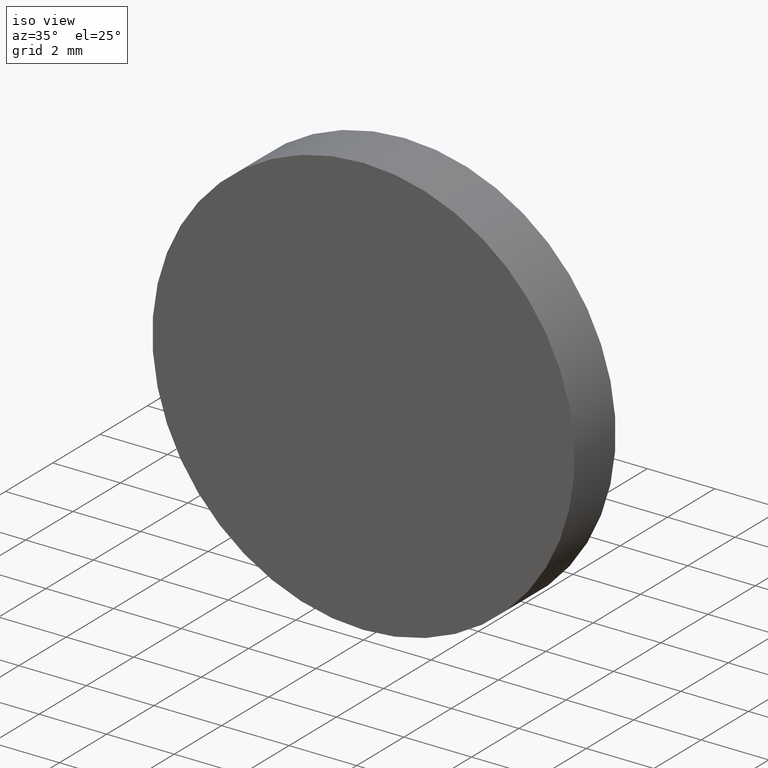
[diagram: clean part render]
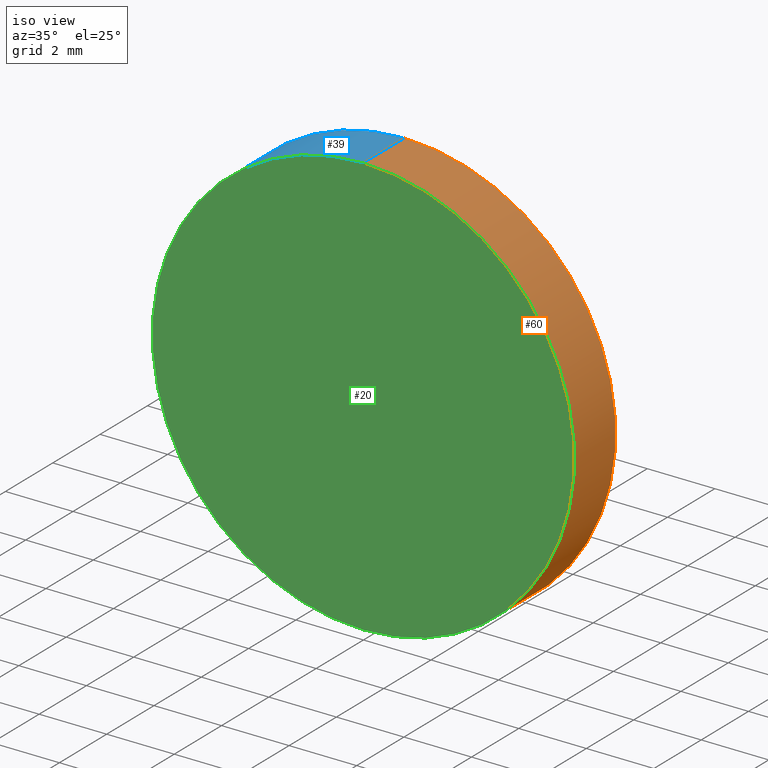
[diagram: same view with three faces highlighted in distinct colors, each labeled with its STEP entity id]
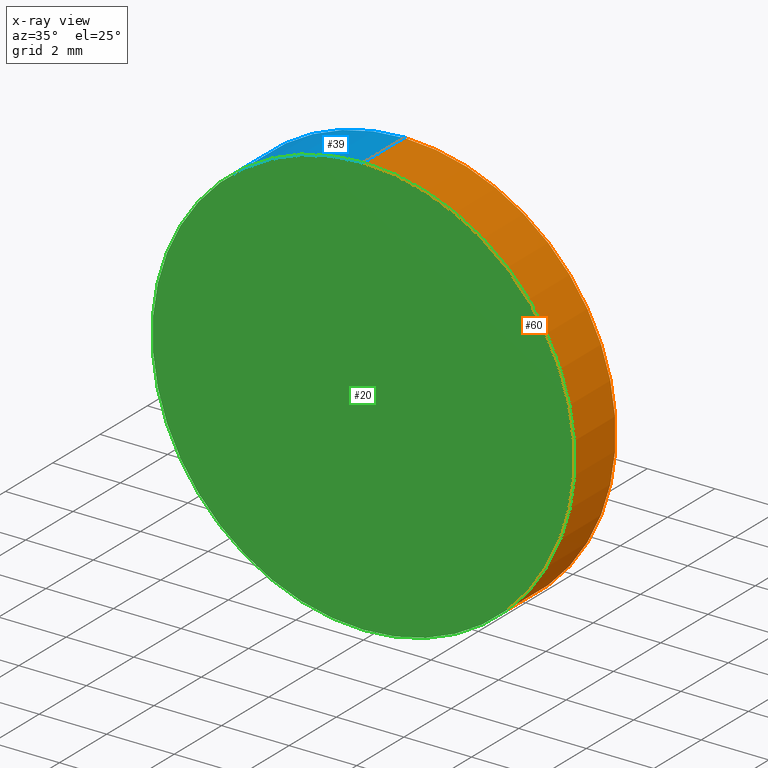
[diagram: x-ray of the same camera — body ghosted, the three highlighted faces saturated]
A machine part, iso view with three faces highlighted in distinct colors.
The next image is the same camera in x-ray (body ghosted, the three faces saturated) — at least one of them is partly hidden behind the body in this view.
Their STEP definitions:

[orange] entity #60 — the highlighted cylindrical surface (partial cylindrical patch) has radius 6.25 mm, axis along (-0, -1, -0).
#7 = CARTESIAN_POINT ( 'NONE',  ( 7.654042494670957600E-016, 0.0000000000000000000, 6.250000000000000000 ) ) ;
#8 = VERTEX_POINT ( 'NONE', #78 ) ;
#11 = CIRCLE ( 'NONE', #108, 6.250000000000000000 ) ;
#12 = VERTEX_POINT ( 'NONE', #32 ) ;
#14 = LINE ( 'NONE', #17, #124 ) ;
#16 = DIRECTION ( 'NONE',  ( 0.0000000000000000000, 0.0000000000000000000, 1.000000000000000000 ) ) ;
#17 = CARTESIAN_POINT ( 'NONE',  ( 7.654042494670957600E-016, 1.740000000000000000, 6.250000000000000000 ) ) ;
#27 = FACE_OUTER_BOUND ( 'NONE', #55, .T. ) ;
#28 = CARTESIAN_POINT ( 'NONE',  ( 0.0000000000000000000, 1.740000000000000000, 0.0000000000000000000 ) ) ;
#29 = VERTEX_POINT ( 'NONE', #7 ) ;
#32 = CARTESIAN_POINT ( 'NONE',  ( 7.654042494670957600E-016, 1.740000000000000000, 6.250000000000000000 ) ) ;
#37 = AXIS2_PLACEMENT_3D ( 'NONE', #28, #89, #16 ) ;
#42 = CIRCLE ( 'NONE', #37, 6.250000000000000000 ) ;
#45 = VECTOR ( 'NONE', #49, 1000.000000000000000 ) ;
#48 = CARTESIAN_POINT ( 'NONE',  ( 0.0000000000000000000, 1.740000000000000000, 0.0000000000000000000 ) ) ;
#49 = DIRECTION ( 'NONE',  ( -0.0000000000000000000, -1.000000000000000000, -0.0000000000000000000 ) ) ;
#55 = EDGE_LOOP ( 'NONE', ( #90, #81, #113, #116 ) ) ;
#58 = EDGE_CURVE ( 'NONE', #95, #8, #75, .T. ) ;
#60 = ADVANCED_FACE ( 'NONE', ( #27 ), #69, .T. ) ;
#62 = DIRECTION ( 'NONE',  ( 0.0000000000000000000, 1.000000000000000000, 0.0000000000000000000 ) ) ;
#69 = CYLINDRICAL_SURFACE ( 'NONE', #100, 6.250000000000000000 ) ;
#73 = EDGE_CURVE ( 'NONE', #12, #29, #14, .T. ) ;
#75 = LINE ( 'NONE', #121, #45 ) ;
#78 = CARTESIAN_POINT ( 'NONE',  ( 0.0000000000000000000, 0.0000000000000000000, -6.250000000000000000 ) ) ;
#81 = ORIENTED_EDGE ( 'NONE', *, *, #73, .T. ) ;
#83 = DIRECTION ( 'NONE',  ( -0.0000000000000000000, -1.000000000000000000, -0.0000000000000000000 ) ) ;
#84 = DIRECTION ( 'NONE',  ( 0.0000000000000000000, 0.0000000000000000000, -1.000000000000000000 ) ) ;
#89 = DIRECTION ( 'NONE',  ( 0.0000000000000000000, 1.000000000000000000, 0.0000000000000000000 ) ) ;
#90 = ORIENTED_EDGE ( 'NONE', *, *, #94, .F. ) ;
#94 = EDGE_CURVE ( 'NONE', #12, #95, #42, .T. ) ;
#95 = VERTEX_POINT ( 'NONE', #132 ) ;
#100 = AXIS2_PLACEMENT_3D ( 'NONE', #48, #112, #84 ) ;
#108 = AXIS2_PLACEMENT_3D ( 'NONE', #131, #62, #118 ) ;
#110 = EDGE_CURVE ( 'NONE', #29, #8, #11, .T. ) ;
#112 = DIRECTION ( 'NONE',  ( -0.0000000000000000000, -1.000000000000000000, -0.0000000000000000000 ) ) ;
#113 = ORIENTED_EDGE ( 'NONE', *, *, #110, .T. ) ;
#116 = ORIENTED_EDGE ( 'NONE', *, *, #58, .F. ) ;
#118 = DIRECTION ( 'NONE',  ( 0.0000000000000000000, 0.0000000000000000000, 1.000000000000000000 ) ) ;
#121 = CARTESIAN_POINT ( 'NONE',  ( 0.0000000000000000000, 1.740000000000000000, -6.250000000000000000 ) ) ;
#124 = VECTOR ( 'NONE', #83, 1000.000000000000000 ) ;
#131 = CARTESIAN_POINT ( 'NONE',  ( 0.0000000000000000000, 0.0000000000000000000, 0.0000000000000000000 ) ) ;
#132 = CARTESIAN_POINT ( 'NONE',  ( 0.0000000000000000000, 1.740000000000000000, -6.250000000000000000 ) ) ;

[blue] entity #39 — the highlighted cylindrical surface (partial cylindrical patch) has radius 6.25 mm, axis along (-0, -1, -0).
#1 = DIRECTION ( 'NONE',  ( 0.0000000000000000000, 0.0000000000000000000, 1.000000000000000000 ) ) ;
#2 = EDGE_LOOP ( 'NONE', ( #23, #129, #120, #21 ) ) ;
#7 = CARTESIAN_POINT ( 'NONE',  ( 7.654042494670957600E-016, 0.0000000000000000000, 6.250000000000000000 ) ) ;
#8 = VERTEX_POINT ( 'NONE', #78 ) ;
#10 = AXIS2_PLACEMENT_3D ( 'NONE', #133, #72, #1 ) ;
#12 = VERTEX_POINT ( 'NONE', #32 ) ;
#14 = LINE ( 'NONE', #17, #124 ) ;
#17 = CARTESIAN_POINT ( 'NONE',  ( 7.654042494670957600E-016, 1.740000000000000000, 6.250000000000000000 ) ) ;
#21 = ORIENTED_EDGE ( 'NONE', *, *, #137, .T. ) ;
#23 = ORIENTED_EDGE ( 'NONE', *, *, #73, .F. ) ;
#26 = DIRECTION ( 'NONE',  ( -0.0000000000000000000, -1.000000000000000000, -0.0000000000000000000 ) ) ;
#29 = VERTEX_POINT ( 'NONE', #7 ) ;
#32 = CARTESIAN_POINT ( 'NONE',  ( 7.654042494670957600E-016, 1.740000000000000000, 6.250000000000000000 ) ) ;
#39 = ADVANCED_FACE ( 'NONE', ( #140 ), #136, .T. ) ;
#45 = VECTOR ( 'NONE', #49, 1000.000000000000000 ) ;
#49 = DIRECTION ( 'NONE',  ( -0.0000000000000000000, -1.000000000000000000, -0.0000000000000000000 ) ) ;
#58 = EDGE_CURVE ( 'NONE', #95, #8, #75, .T. ) ;
#59 = AXIS2_PLACEMENT_3D ( 'NONE', #125, #26, #67 ) ;
#64 = CARTESIAN_POINT ( 'NONE',  ( 0.0000000000000000000, 1.740000000000000000, 0.0000000000000000000 ) ) ;
#67 = DIRECTION ( 'NONE',  ( 0.0000000000000000000, 0.0000000000000000000, -1.000000000000000000 ) ) ;
#72 = DIRECTION ( 'NONE',  ( 0.0000000000000000000, 1.000000000000000000, 0.0000000000000000000 ) ) ;
#73 = EDGE_CURVE ( 'NONE', #12, #29, #14, .T. ) ;
#75 = LINE ( 'NONE', #121, #45 ) ;
#78 = CARTESIAN_POINT ( 'NONE',  ( 0.0000000000000000000, 0.0000000000000000000, -6.250000000000000000 ) ) ;
#83 = DIRECTION ( 'NONE',  ( -0.0000000000000000000, -1.000000000000000000, -0.0000000000000000000 ) ) ;
#87 = EDGE_CURVE ( 'NONE', #95, #12, #102, .T. ) ;
#95 = VERTEX_POINT ( 'NONE', #132 ) ;
#98 = CIRCLE ( 'NONE', #10, 6.250000000000000000 ) ;
#102 = CIRCLE ( 'NONE', #114, 6.250000000000000000 ) ;
#111 = DIRECTION ( 'NONE',  ( 0.0000000000000000000, 0.0000000000000000000, 1.000000000000000000 ) ) ;
#114 = AXIS2_PLACEMENT_3D ( 'NONE', #64, #119, #111 ) ;
#119 = DIRECTION ( 'NONE',  ( 0.0000000000000000000, 1.000000000000000000, 0.0000000000000000000 ) ) ;
#120 = ORIENTED_EDGE ( 'NONE', *, *, #58, .T. ) ;
#121 = CARTESIAN_POINT ( 'NONE',  ( 0.0000000000000000000, 1.740000000000000000, -6.250000000000000000 ) ) ;
#124 = VECTOR ( 'NONE', #83, 1000.000000000000000 ) ;
#125 = CARTESIAN_POINT ( 'NONE',  ( 0.0000000000000000000, 1.740000000000000000, 0.0000000000000000000 ) ) ;
#129 = ORIENTED_EDGE ( 'NONE', *, *, #87, .F. ) ;
#132 = CARTESIAN_POINT ( 'NONE',  ( 0.0000000000000000000, 1.740000000000000000, -6.250000000000000000 ) ) ;
#133 = CARTESIAN_POINT ( 'NONE',  ( 0.0000000000000000000, 0.0000000000000000000, 0.0000000000000000000 ) ) ;
#136 = CYLINDRICAL_SURFACE ( 'NONE', #59, 6.250000000000000000 ) ;
#137 = EDGE_CURVE ( 'NONE', #8, #29, #98, .T. ) ;
#140 = FACE_OUTER_BOUND ( 'NONE', #2, .T. ) ;

[green] entity #20 — the highlighted planar face has unit normal (0, 1, 0).
#1 = DIRECTION ( 'NONE',  ( 0.0000000000000000000, 0.0000000000000000000, 1.000000000000000000 ) ) ;
#7 = CARTESIAN_POINT ( 'NONE',  ( 7.654042494670957600E-016, 0.0000000000000000000, 6.250000000000000000 ) ) ;
#8 = VERTEX_POINT ( 'NONE', #78 ) ;
#10 = AXIS2_PLACEMENT_3D ( 'NONE', #133, #72, #1 ) ;
#11 = CIRCLE ( 'NONE', #108, 6.250000000000000000 ) ;
#20 = ADVANCED_FACE ( 'NONE', ( #134 ), #99, .F. ) ;
#29 = VERTEX_POINT ( 'NONE', #7 ) ;
#33 = DIRECTION ( 'NONE',  ( 0.0000000000000000000, -0.0000000000000000000, 1.000000000000000000 ) ) ;
#34 = CARTESIAN_POINT ( 'NONE',  ( 0.0000000000000000000, 0.0000000000000000000, 0.0000000000000000000 ) ) ;
#38 = ORIENTED_EDGE ( 'NONE', *, *, #137, .F. ) ;
#54 = DIRECTION ( 'NONE',  ( 0.0000000000000000000, 1.000000000000000000, 0.0000000000000000000 ) ) ;
#62 = DIRECTION ( 'NONE',  ( 0.0000000000000000000, 1.000000000000000000, 0.0000000000000000000 ) ) ;
#72 = DIRECTION ( 'NONE',  ( 0.0000000000000000000, 1.000000000000000000, 0.0000000000000000000 ) ) ;
#77 = AXIS2_PLACEMENT_3D ( 'NONE', #34, #54, #33 ) ;
#78 = CARTESIAN_POINT ( 'NONE',  ( 0.0000000000000000000, 0.0000000000000000000, -6.250000000000000000 ) ) ;
#98 = CIRCLE ( 'NONE', #10, 6.250000000000000000 ) ;
#99 = PLANE ( 'NONE',  #77 ) ;
#108 = AXIS2_PLACEMENT_3D ( 'NONE', #131, #62, #118 ) ;
#109 = EDGE_LOOP ( 'NONE', ( #38, #138 ) ) ;
#110 = EDGE_CURVE ( 'NONE', #29, #8, #11, .T. ) ;
#118 = DIRECTION ( 'NONE',  ( 0.0000000000000000000, 0.0000000000000000000, 1.000000000000000000 ) ) ;
#131 = CARTESIAN_POINT ( 'NONE',  ( 0.0000000000000000000, 0.0000000000000000000, 0.0000000000000000000 ) ) ;
#133 = CARTESIAN_POINT ( 'NONE',  ( 0.0000000000000000000, 0.0000000000000000000, 0.0000000000000000000 ) ) ;
#134 = FACE_OUTER_BOUND ( 'NONE', #109, .T. ) ;
#137 = EDGE_CURVE ( 'NONE', #8, #29, #98, .T. ) ;
#138 = ORIENTED_EDGE ( 'NONE', *, *, #110, .F. ) ;